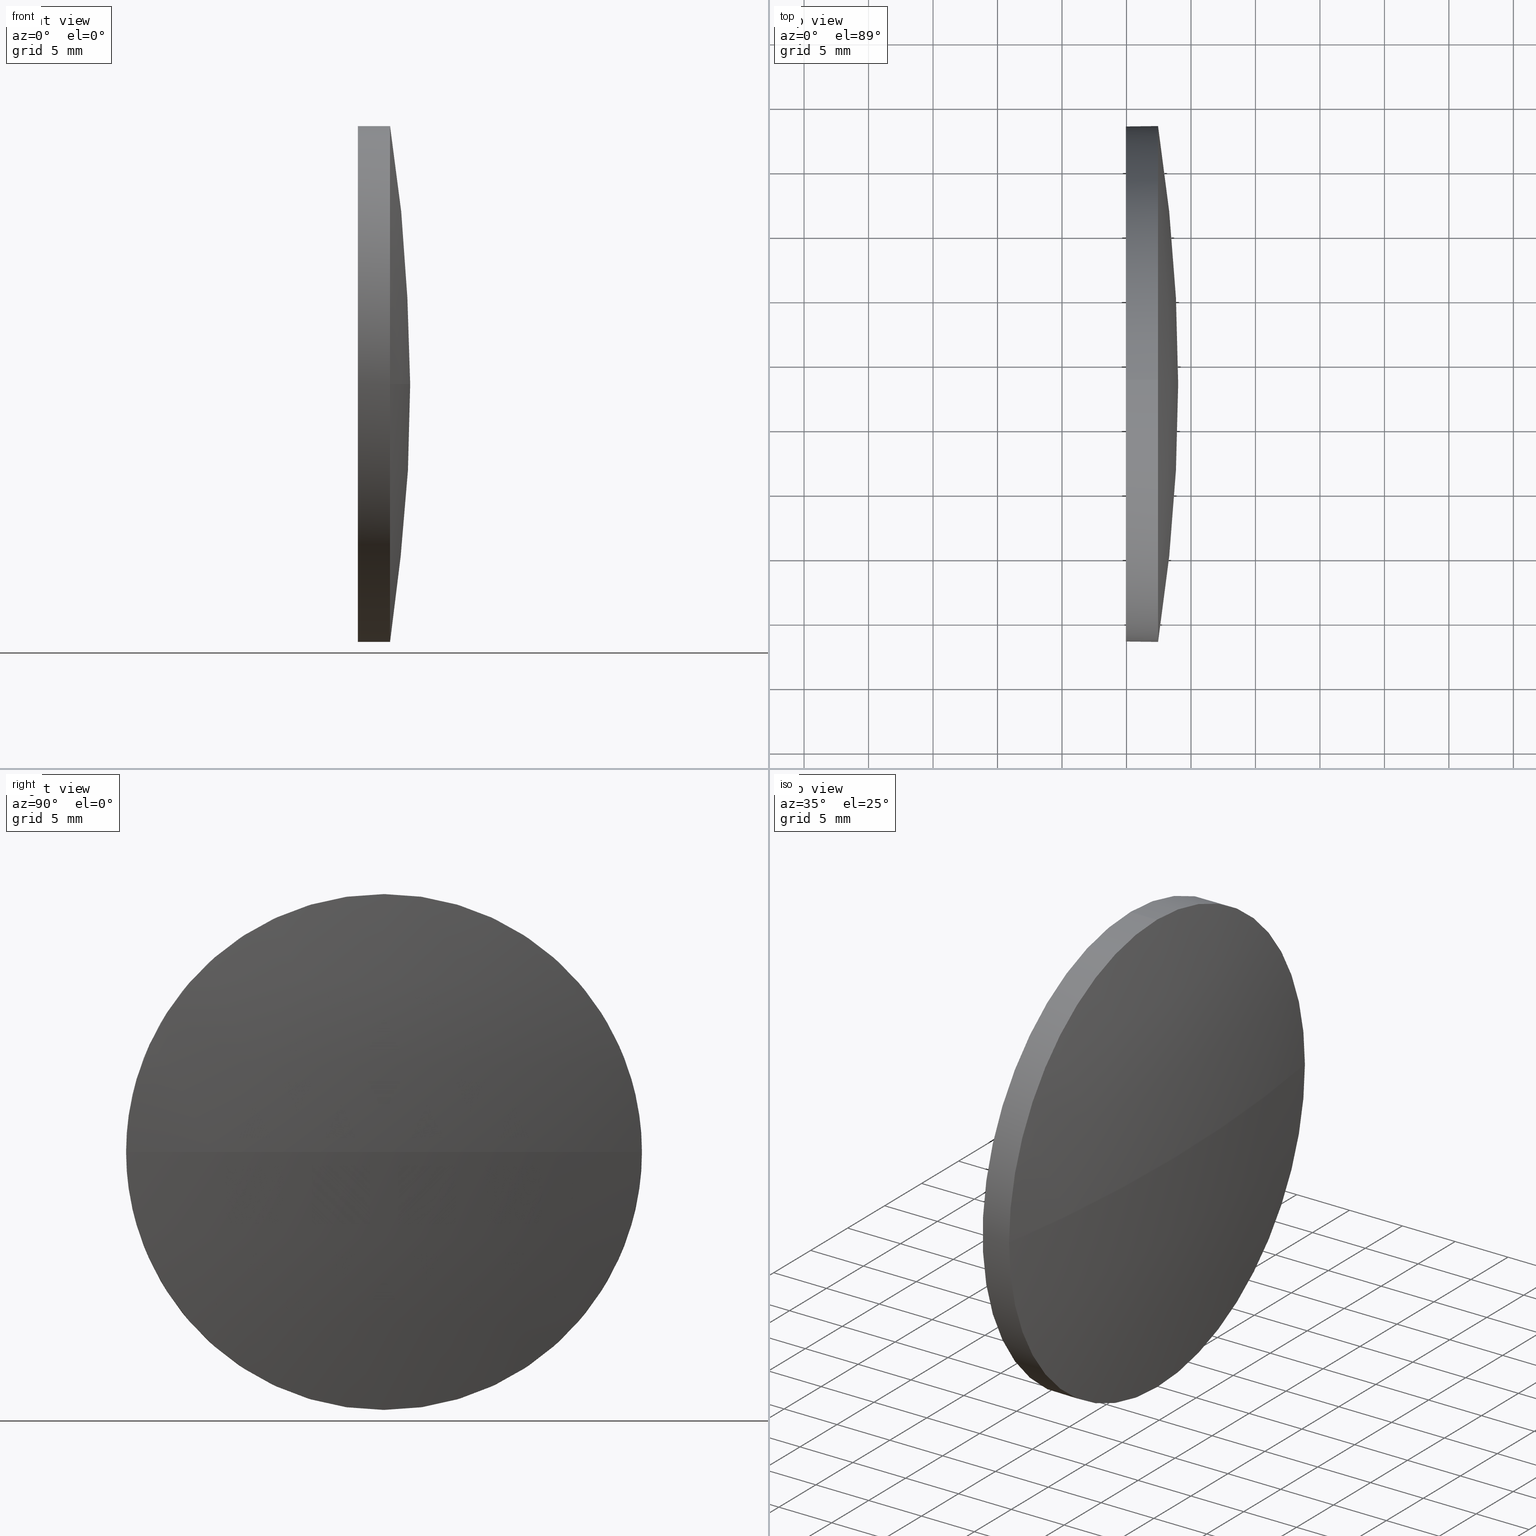
[diagram: canonical four-view strip — front | top / right | iso, engineering-drawing reading convention]
A machine part, canonical four-view strip (front | top / right | iso — engineering-drawing reading convention). The complete STEP part file that produces these views, byte-faithful:
ISO-10303-21;
HEADER;
FILE_DESCRIPTION (( 'STEP AP214' ),
    '1' );
FILE_NAME ('100148.STEP',
    '2019-05-15T08:36:40',
    ( '' ),
    ( '' ),
    'SwSTEP 2.0',
    'SolidWorks 2016',
    '' );
FILE_SCHEMA (( 'AUTOMOTIVE_DESIGN' ));
ENDSEC;

DATA;
#1 = CARTESIAN_POINT ( 'NONE',  ( 449.9479601243584200, 48.34004020051941100, 19.99999999999999600 ) ) ;
#2 = DIRECTION ( 'NONE',  ( -1.000000000000000000, -0.0000000000000000000, -0.0000000000000000000 ) ) ;
#3 = SURFACE_STYLE_USAGE ( .BOTH. , #142 ) ;
#4 = DIRECTION ( 'NONE',  ( -1.000000000000000000, -0.0000000000000000000, -0.0000000000000000000 ) ) ;
#5 = VECTOR ( 'NONE', #2, 1000.000000000000000 ) ;
#6 = MECHANICAL_DESIGN_GEOMETRIC_PRESENTATION_REPRESENTATION (  '', ( #77 ), #134 ) ;
#7 = SURFACE_SIDE_STYLE ('',( #90 ) ) ;
#8 = VERTEX_POINT ( 'NONE', #184 ) ;
#9 = ORIENTED_EDGE ( 'NONE', *, *, #76, .T. ) ;
#10 = EDGE_CURVE ( 'NONE', #29, #74, #50, .T. ) ;
#11 = FACE_OUTER_BOUND ( 'NONE', #182, .T. ) ;
#12 = DIRECTION ( 'NONE',  ( -1.000000000000000000, -0.0000000000000000000, -0.0000000000000000000 ) ) ;
#13 = DIRECTION ( 'NONE',  ( 0.0000000000000000000, 0.0000000000000000000, 1.000000000000000000 ) ) ;
#14 = APPLICATION_PROTOCOL_DEFINITION ( 'draft international standard', 'automotive_design', 1998, #162 ) ;
#15 = AXIS2_PLACEMENT_3D ( 'NONE', #71, #4, #112 ) ;
#16 = DIRECTION ( 'NONE',  ( -1.000000000000000000, 0.0000000000000000000, 0.0000000000000000000 ) ) ;
#17 = ORIENTED_EDGE ( 'NONE', *, *, #125, .T. ) ;
#18 = SPHERICAL_SURFACE ( 'NONE', #49, 128.9851282051280900 ) ;
#19 = ADVANCED_FACE ( 'NONE', ( #150 ), #88, .T. ) ;
#20 = AXIS2_PLACEMENT_3D ( 'NONE', #61, #43, #101 ) ;
#21 = UNCERTAINTY_MEASURE_WITH_UNIT (LENGTH_MEASURE( 1.000000000000000100E-005 ), #135, 'distance_accuracy_value', 'NONE');
#22 = AXIS2_PLACEMENT_3D ( 'NONE', #146, #100, #16 ) ;
#23 = ORIENTED_EDGE ( 'NONE', *, *, #159, .T. ) ;
#24 =( NAMED_UNIT ( * ) SI_UNIT ( $, .STERADIAN. ) SOLID_ANGLE_UNIT ( ) );
#25 = DIRECTION ( 'NONE',  ( 0.0000000000000000000, 0.0000000000000000000, 1.000000000000000000 ) ) ;
#26 = CARTESIAN_POINT ( 'NONE',  ( 452.4479601243584200, 48.34004020051941100, 0.0000000000000000000 ) ) ;
#27 = ORIENTED_EDGE ( 'NONE', *, *, #54, .T. ) ;
#28 = EDGE_LOOP ( 'NONE', ( #126, #96, #80, #183 ) ) ;
#29 = VERTEX_POINT ( 'NONE', #153 ) ;
#30 = AXIS2_PLACEMENT_3D ( 'NONE', #82, #175, #141 ) ;
#31 = UNCERTAINTY_MEASURE_WITH_UNIT (LENGTH_MEASURE( 1.000000000000000100E-005 ), #72, 'distance_accuracy_value', 'NONE');
#32 = VERTEX_POINT ( 'NONE', #98 ) ;
#33 =( GEOMETRIC_REPRESENTATION_CONTEXT ( 3 ) GLOBAL_UNCERTAINTY_ASSIGNED_CONTEXT ( ( #84 ) ) GLOBAL_UNIT_ASSIGNED_CONTEXT ( ( #85, #41, #45 ) ) REPRESENTATION_CONTEXT ( 'NONE', 'WORKASPACE' ) );
#34 = ADVANCED_BREP_SHAPE_REPRESENTATION ( '100148', ( #68, #20 ), #33 ) ;
#35 = CARTESIAN_POINT ( 'NONE',  ( 452.4479601243584200, 48.34004020051941100, 0.0000000000000000000 ) ) ;
#36 = ADVANCED_FACE ( 'NONE', ( #11 ), #168, .F. ) ;
#37 = DIRECTION ( 'NONE',  ( 0.0000000000000000000, -1.224646799147353200E-016, 1.000000000000000000 ) ) ;
#38 =( NAMED_UNIT ( * ) PLANE_ANGLE_UNIT ( ) SI_UNIT ( $, .RADIAN. ) );
#39 = DIRECTION ( 'NONE',  ( -1.000000000000000000, -0.0000000000000000000, -0.0000000000000000000 ) ) ;
#40 = DIRECTION ( 'NONE',  ( 0.0000000000000000000, 0.0000000000000000000, 1.000000000000000000 ) ) ;
#41 =( NAMED_UNIT ( * ) PLANE_ANGLE_UNIT ( ) SI_UNIT ( $, .RADIAN. ) );
#42 = COLOUR_RGB ( '',1.000000000000000000, 1.000000000000000000, 1.000000000000000000 ) ;
#43 = DIRECTION ( 'NONE',  ( 0.0000000000000000000, 0.0000000000000000000, 1.000000000000000000 ) ) ;
#44 = AXIS2_PLACEMENT_3D ( 'NONE', #102, #39, #120 ) ;
#45 =( NAMED_UNIT ( * ) SI_UNIT ( $, .STERADIAN. ) SOLID_ANGLE_UNIT ( ) );
#46 = SURFACE_STYLE_FILL_AREA ( #58 ) ;
#47 = CIRCLE ( 'NONE', #122, 19.99999999999999600 ) ;
#48 = PRODUCT_DEFINITION_CONTEXT ( 'detailed design', #117, 'design' ) ;
#49 = AXIS2_PLACEMENT_3D ( 'NONE', #177, #144, #73 ) ;
#50 = CIRCLE ( 'NONE', #15, 19.99999999999999600 ) ;
#51 = ADVANCED_FACE ( 'NONE', ( #156 ), #70, .T. ) ;
#52 = DIRECTION ( 'NONE',  ( 0.0000000000000000000, -1.000000000000000000, 0.0000000000000000000 ) ) ;
#53 = FILL_AREA_STYLE_COLOUR ( '', #167 ) ;
#54 = EDGE_CURVE ( 'NONE', #78, #29, #75, .T. ) ;
#55 = CARTESIAN_POINT ( 'NONE',  ( 452.4479601243584200, 48.34004020051941100, 0.0000000000000000000 ) ) ;
#56 = ORIENTED_EDGE ( 'NONE', *, *, #10, .T. ) ;
#57 = DIRECTION ( 'NONE',  ( -1.000000000000000000, -0.0000000000000000000, -0.0000000000000000000 ) ) ;
#58 = FILL_AREA_STYLE ('',( #53 ) ) ;
#59 = CARTESIAN_POINT ( 'NONE',  ( 452.4479601243584200, 28.34004020051945700, 0.0000000000000000000 ) ) ;
#60 = VECTOR ( 'NONE', #87, 1000.000000000000000 ) ;
#61 = CARTESIAN_POINT ( 'NONE',  ( 0.0000000000000000000, 0.0000000000000000000, 0.0000000000000000000 ) ) ;
#62 =( NAMED_UNIT ( * ) PLANE_ANGLE_UNIT ( ) SI_UNIT ( $, .RADIAN. ) );
#63 =( NAMED_UNIT ( * ) SI_UNIT ( $, .STERADIAN. ) SOLID_ANGLE_UNIT ( ) );
#64 = CIRCLE ( 'NONE', #22, 128.9851282051280900 ) ;
#65 = ORIENTED_EDGE ( 'NONE', *, *, #99, .T. ) ;
#66 = CIRCLE ( 'NONE', #145, 19.99999999999999600 ) ;
#67 = CLOSED_SHELL ( 'NONE', ( #108, #152, #19, #51, #36 ) ) ;
#68 = MANIFOLD_SOLID_BREP ( '��ת1', #67 ) ;
#69 = ORIENTED_EDGE ( 'NONE', *, *, #10, .F. ) ;
#70 = CYLINDRICAL_SURFACE ( 'NONE', #30, 19.99999999999999600 ) ;
#71 = CARTESIAN_POINT ( 'NONE',  ( 449.9479601243584200, 48.34004020051941100, 0.0000000000000000000 ) ) ;
#72 =( LENGTH_UNIT ( ) NAMED_UNIT ( * ) SI_UNIT ( .MILLI., .METRE. ) );
#73 = DIRECTION ( 'NONE',  ( 0.0000000000000000000, -1.000000000000000000, 0.0000000000000000000 ) ) ;
#74 = VERTEX_POINT ( 'NONE', #1 ) ;
#75 = LINE ( 'NONE', #115, #5 ) ;
#76 = EDGE_CURVE ( 'NONE', #32, #139, #103, .T. ) ;
#77 = STYLED_ITEM ( 'NONE', ( #155 ), #34 ) ;
#78 = VERTEX_POINT ( 'NONE', #127 ) ;
#79 = CARTESIAN_POINT ( 'NONE',  ( 325.0228319192303300, 48.34004020051951800, 0.0000000000000000000 ) ) ;
#80 = ORIENTED_EDGE ( 'NONE', *, *, #99, .F. ) ;
#81 = CARTESIAN_POINT ( 'NONE',  ( 325.0228319192303300, 48.34004020051951800, 0.0000000000000000000 ) ) ;
#82 = CARTESIAN_POINT ( 'NONE',  ( 445.2534169437813000, 48.34004020051941100, 0.0000000000000000000 ) ) ;
#83 = EDGE_LOOP ( 'NONE', ( #113, #27, #164, #129, #119 ) ) ;
#84 = UNCERTAINTY_MEASURE_WITH_UNIT (LENGTH_MEASURE( 1.000000000000000100E-005 ), #85, 'distance_accuracy_value', 'NONE');
#85 =( LENGTH_UNIT ( ) NAMED_UNIT ( * ) SI_UNIT ( .MILLI., .METRE. ) );
#86 = PRESENTATION_LAYER_ASSIGNMENT (  '', '', ( #173 ) ) ;
#87 = DIRECTION ( 'NONE',  ( -1.000000000000000000, -0.0000000000000000000, -0.0000000000000000000 ) ) ;
#88 = SPHERICAL_SURFACE ( 'NONE', #165, 128.9851282051280900 ) ;
#89 = PRODUCT_DEFINITION_FORMATION_WITH_SPECIFIED_SOURCE ( '�κ�', '', #130, .NOT_KNOWN. ) ;
#90 = SURFACE_STYLE_FILL_AREA ( #121 ) ;
#91 = SHAPE_DEFINITION_REPRESENTATION ( #170, #34 ) ;
#92 = MECHANICAL_DESIGN_GEOMETRIC_PRESENTATION_REPRESENTATION (  '', ( #173 ), #106 ) ;
#93 = DIRECTION ( 'NONE',  ( 1.000000000000000000, 0.0000000000000000000, 0.0000000000000000000 ) ) ;
#94 = DIRECTION ( 'NONE',  ( 0.0000000000000000000, 0.0000000000000000000, 1.000000000000000000 ) ) ;
#95 = CYLINDRICAL_SURFACE ( 'NONE', #186, 19.99999999999999600 ) ;
#96 = ORIENTED_EDGE ( 'NONE', *, *, #123, .T. ) ;
#97 = DIRECTION ( 'NONE',  ( -1.000000000000000000, -0.0000000000000000000, -0.0000000000000000000 ) ) ;
#98 = CARTESIAN_POINT ( 'NONE',  ( 454.0079601243584200, 48.34004020051951000, 0.0000000000000000000 ) ) ;
#99 = EDGE_CURVE ( 'NONE', #78, #172, #111, .T. ) ;
#100 = DIRECTION ( 'NONE',  ( 0.0000000000000000000, 0.0000000000000000000, -1.000000000000000000 ) ) ;
#101 = DIRECTION ( 'NONE',  ( 1.000000000000000000, 0.0000000000000000000, 0.0000000000000000000 ) ) ;
#102 = CARTESIAN_POINT ( 'NONE',  ( 449.9479601243584200, 48.34004020051941100, 0.0000000000000000000 ) ) ;
#103 = CIRCLE ( 'NONE', #118, 128.9851282051280900 ) ;
#104 = EDGE_LOOP ( 'NONE', ( #109, #9, #154, #151 ) ) ;
#105 = EDGE_LOOP ( 'NONE', ( #124, #65, #23, #17, #69 ) ) ;
#106 =( GEOMETRIC_REPRESENTATION_CONTEXT ( 3 ) GLOBAL_UNCERTAINTY_ASSIGNED_CONTEXT ( ( #31 ) ) GLOBAL_UNIT_ASSIGNED_CONTEXT ( ( #72, #38, #24 ) ) REPRESENTATION_CONTEXT ( 'NONE', 'WORKASPACE' ) );
#107 = PRODUCT_DEFINITION ( 'δ֪', '', #89, #48 ) ;
#108 = ADVANCED_FACE ( 'NONE', ( #132 ), #95, .T. ) ;
#109 = ORIENTED_EDGE ( 'NONE', *, *, #123, .F. ) ;
#110 = EDGE_CURVE ( 'NONE', #8, #139, #66, .T. ) ;
#111 = CIRCLE ( 'NONE', #138, 19.99999999999999600 ) ;
#112 = DIRECTION ( 'NONE',  ( 0.0000000000000000000, 0.0000000000000000000, 1.000000000000000000 ) ) ;
#113 = ORIENTED_EDGE ( 'NONE', *, *, #114, .T. ) ;
#114 = EDGE_CURVE ( 'NONE', #139, #78, #166, .T. ) ;
#115 = CARTESIAN_POINT ( 'NONE',  ( 445.2534169437813000, 48.34004020051941100, -19.99999999999999600 ) ) ;
#116 = ORIENTED_EDGE ( 'NONE', *, *, #148, .T. ) ;
#117 = APPLICATION_CONTEXT ( 'automotive_design' ) ;
#118 = AXIS2_PLACEMENT_3D ( 'NONE', #81, #37, #128 ) ;
#119 = ORIENTED_EDGE ( 'NONE', *, *, #110, .T. ) ;
#120 = DIRECTION ( 'NONE',  ( 0.0000000000000000000, 0.0000000000000000000, 1.000000000000000000 ) ) ;
#121 = FILL_AREA_STYLE ('',( #143 ) ) ;
#122 = AXIS2_PLACEMENT_3D ( 'NONE', #133, #178, #40 ) ;
#123 = EDGE_CURVE ( 'NONE', #32, #172, #64, .T. ) ;
#124 = ORIENTED_EDGE ( 'NONE', *, *, #54, .F. ) ;
#125 = EDGE_CURVE ( 'NONE', #8, #74, #149, .T. ) ;
#126 = ORIENTED_EDGE ( 'NONE', *, *, #76, .F. ) ;
#127 = CARTESIAN_POINT ( 'NONE',  ( 452.4479601243584200, 48.34004020051941100, -19.99999999999999600 ) ) ;
#128 = DIRECTION ( 'NONE',  ( 0.0000000000000000000, -1.000000000000000000, -1.224646799147353200E-016 ) ) ;
#129 = ORIENTED_EDGE ( 'NONE', *, *, #125, .F. ) ;
#130 = PRODUCT ( '100148', '100148', '', ( #160 ) ) ;
#131 = CARTESIAN_POINT ( 'NONE',  ( 452.4479601243584200, 68.34004020051948200, 2.449293598294701000E-015 ) ) ;
#132 = FACE_OUTER_BOUND ( 'NONE', #83, .T. ) ;
#133 = CARTESIAN_POINT ( 'NONE',  ( 452.4479601243584200, 48.34004020051941100, 0.0000000000000000000 ) ) ;
#134 =( GEOMETRIC_REPRESENTATION_CONTEXT ( 3 ) GLOBAL_UNCERTAINTY_ASSIGNED_CONTEXT ( ( #21 ) ) GLOBAL_UNIT_ASSIGNED_CONTEXT ( ( #135, #62, #63 ) ) REPRESENTATION_CONTEXT ( 'NONE', 'WORKASPACE' ) );
#135 =( LENGTH_UNIT ( ) NAMED_UNIT ( * ) SI_UNIT ( .MILLI., .METRE. ) );
#136 = AXIS2_PLACEMENT_3D ( 'NONE', #157, #93, #171 ) ;
#137 = PRODUCT_RELATED_PRODUCT_CATEGORY ( 'part', '', ( #130 ) ) ;
#138 = AXIS2_PLACEMENT_3D ( 'NONE', #55, #174, #13 ) ;
#139 = VERTEX_POINT ( 'NONE', #131 ) ;
#140 = CARTESIAN_POINT ( 'NONE',  ( 445.2534169437813000, 48.34004020051941100, 0.0000000000000000000 ) ) ;
#141 = DIRECTION ( 'NONE',  ( 0.0000000000000000000, 0.0000000000000000000, 1.000000000000000000 ) ) ;
#142 = SURFACE_SIDE_STYLE ('',( #46 ) ) ;
#143 = FILL_AREA_STYLE_COLOUR ( '', #42 ) ;
#144 = DIRECTION ( 'NONE',  ( 0.0000000000000000000, 0.0000000000000000000, 1.000000000000000000 ) ) ;
#145 = AXIS2_PLACEMENT_3D ( 'NONE', #35, #12, #25 ) ;
#146 = CARTESIAN_POINT ( 'NONE',  ( 325.0228319192303300, 48.34004020051951800, 0.0000000000000000000 ) ) ;
#147 = PRESENTATION_STYLE_ASSIGNMENT (( #3 ) ) ;
#148 = EDGE_CURVE ( 'NONE', #74, #29, #163, .T. ) ;
#149 = LINE ( 'NONE', #180, #60 ) ;
#150 = FACE_OUTER_BOUND ( 'NONE', #28, .T. ) ;
#151 = ORIENTED_EDGE ( 'NONE', *, *, #159, .F. ) ;
#152 = ADVANCED_FACE ( 'NONE', ( #181 ), #18, .T. ) ;
#153 = CARTESIAN_POINT ( 'NONE',  ( 449.9479601243584200, 48.34004020051941100, -19.99999999999999600 ) ) ;
#154 = ORIENTED_EDGE ( 'NONE', *, *, #110, .F. ) ;
#155 = PRESENTATION_STYLE_ASSIGNMENT (( #176 ) ) ;
#156 = FACE_OUTER_BOUND ( 'NONE', #105, .T. ) ;
#157 = CARTESIAN_POINT ( 'NONE',  ( 449.9479601243584200, 48.34004020051941100, 0.0000000000000000000 ) ) ;
#158 = APPLICATION_PROTOCOL_DEFINITION ( 'draft international standard', 'automotive_design', 1998, #117 ) ;
#159 = EDGE_CURVE ( 'NONE', #172, #8, #47, .T. ) ;
#160 = PRODUCT_CONTEXT ( 'NONE', #162, 'mechanical' ) ;
#161 = DIRECTION ( 'NONE',  ( 0.0000000000000000000, 0.0000000000000000000, 1.000000000000000000 ) ) ;
#162 = APPLICATION_CONTEXT ( 'automotive_design' ) ;
#163 = CIRCLE ( 'NONE', #44, 19.99999999999999600 ) ;
#164 = ORIENTED_EDGE ( 'NONE', *, *, #148, .F. ) ;
#165 = AXIS2_PLACEMENT_3D ( 'NONE', #79, #94, #52 ) ;
#166 = CIRCLE ( 'NONE', #179, 19.99999999999999600 ) ;
#167 = COLOUR_RGB ( '',1.000000000000000000, 1.000000000000000000, 1.000000000000000000 ) ;
#168 = PLANE ( 'NONE',  #136 ) ;
#169 = PRESENTATION_LAYER_ASSIGNMENT (  '', '', ( #77 ) ) ;
#170 = PRODUCT_DEFINITION_SHAPE ( 'NONE', 'NONE',  #107 ) ;
#171 = DIRECTION ( 'NONE',  ( 0.0000000000000000000, 0.0000000000000000000, -1.000000000000000000 ) ) ;
#172 = VERTEX_POINT ( 'NONE', #59 ) ;
#173 = STYLED_ITEM ( 'NONE', ( #147 ), #68 ) ;
#174 = DIRECTION ( 'NONE',  ( -1.000000000000000000, -0.0000000000000000000, -0.0000000000000000000 ) ) ;
#175 = DIRECTION ( 'NONE',  ( -1.000000000000000000, -0.0000000000000000000, -0.0000000000000000000 ) ) ;
#176 = SURFACE_STYLE_USAGE ( .BOTH. , #7 ) ;
#177 = CARTESIAN_POINT ( 'NONE',  ( 325.0228319192303300, 48.34004020051951800, 0.0000000000000000000 ) ) ;
#178 = DIRECTION ( 'NONE',  ( -1.000000000000000000, -0.0000000000000000000, -0.0000000000000000000 ) ) ;
#179 = AXIS2_PLACEMENT_3D ( 'NONE', #26, #57, #161 ) ;
#180 = CARTESIAN_POINT ( 'NONE',  ( 445.2534169437813000, 48.34004020051941100, 19.99999999999999600 ) ) ;
#181 = FACE_OUTER_BOUND ( 'NONE', #104, .T. ) ;
#182 = EDGE_LOOP ( 'NONE', ( #116, #56 ) ) ;
#183 = ORIENTED_EDGE ( 'NONE', *, *, #114, .F. ) ;
#184 = CARTESIAN_POINT ( 'NONE',  ( 452.4479601243584200, 48.34004020051941100, 19.99999999999999600 ) ) ;
#185 = DIRECTION ( 'NONE',  ( 0.0000000000000000000, 0.0000000000000000000, 1.000000000000000000 ) ) ;
#186 = AXIS2_PLACEMENT_3D ( 'NONE', #140, #97, #185 ) ;
ENDSEC;
END-ISO-10303-21;
